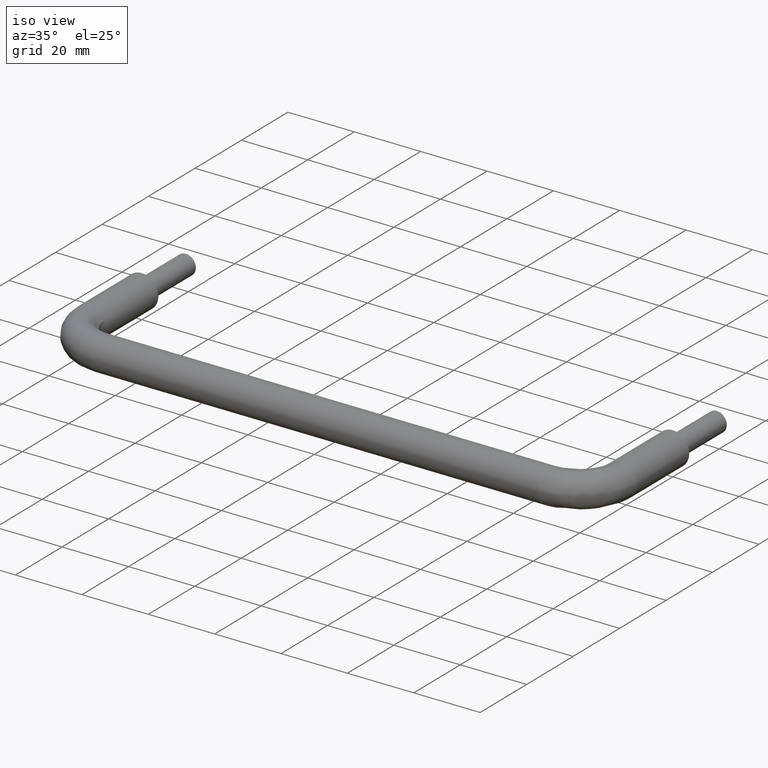
[diagram: clean part render]
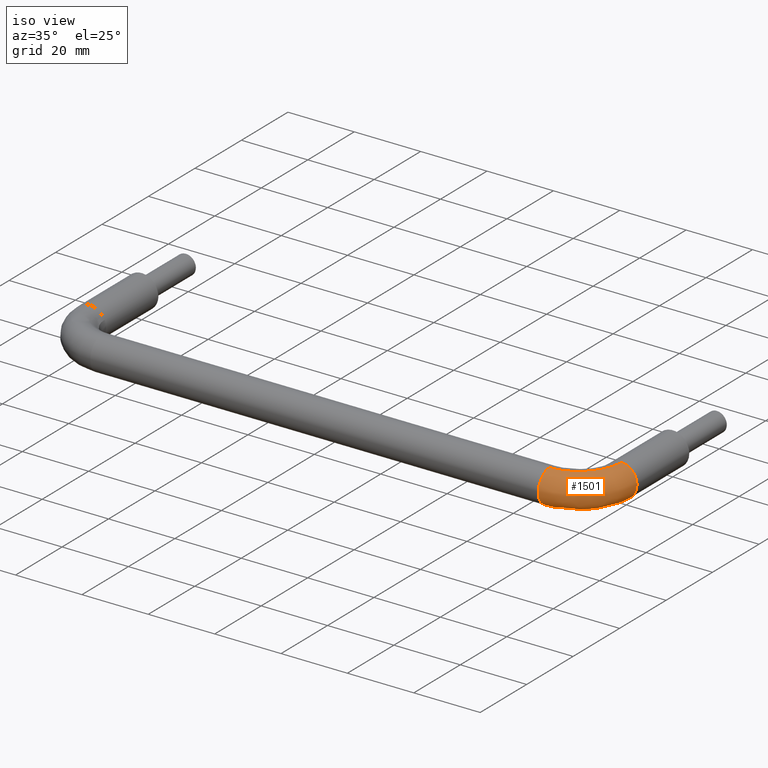
[diagram: same view with one face highlighted and labeled with its STEP entity id]
A machine part, iso view. The second image highlights one B-rep face of the part: STEP entity #1501.
In plain terms, the highlighted face is a freeform B-spline surface patch.
Its self-contained STEP definition (entity closure, byte-faithful):
#730=CARTESIAN_POINT('',(163.294846744962510,-22.499999999999972,-3.760848963626144));
#731=VERTEX_POINT('',#730);
#732=CARTESIAN_POINT('',(159.937169799699600,-22.500000000789459,-4.999605221007975));
#733=VERTEX_POINT('',#732);
#734=CARTESIAN_POINT('',(163.294846744962570,-22.499999999999996,-3.760848963626326));
#735=CARTESIAN_POINT('',(161.880438048094560,-22.499999999999993,-5.0));
#736=CARTESIAN_POINT('',(160.0,-22.500000000000000,-5.0));
#737=CARTESIAN_POINT('',(159.968583659156850,-22.500000000000000,-5.000000000000001));
#738=CARTESIAN_POINT('',(159.937169799699660,-22.500000000789463,-4.999605221007975));
#746=(BOUNDED_CURVE()B_SPLINE_CURVE(2,(#734,#735,#736,#737,#738),.UNSPECIFIED.,.F.,.U.)B_SPLINE_CURVE_WITH_KNOTS((3,2,3),(0.134954764893290,0.250000000000000,0.252215704140435),.UNSPECIFIED.)CURVE()GEOMETRIC_REPRESENTATION_ITEM()RATIONAL_B_SPLINE_CURVE((0.854482188675951,0.865216123121782,1.0,0.997404141129478,0.994854295500936))REPRESENTATION_ITEM(''));
#747=EDGE_CURVE('',#731,#733,#746,.T.);
#848=CARTESIAN_POINT('',(165.0,-22.500000000000000,0.0));
#849=VERTEX_POINT('',#848);
#850=CARTESIAN_POINT('',(165.0,-22.500000000000000,0.0));
#851=CARTESIAN_POINT('',(165.0,-22.499999999999993,-2.266979173491211));
#852=CARTESIAN_POINT('',(163.294846744962570,-22.499999999999996,-3.760848963626326));
#860=(BOUNDED_CURVE()B_SPLINE_CURVE(2,(#850,#851,#852),.UNSPECIFIED.,.F.,.U.)B_SPLINE_CURVE_WITH_KNOTS((3,3),(0.0,0.134954764893290),.UNSPECIFIED.)CURVE()GEOMETRIC_REPRESENTATION_ITEM()RATIONAL_B_SPLINE_CURVE((1.0,0.841890658064766,0.854482188675951))REPRESENTATION_ITEM(''));
#861=EDGE_CURVE('',#849,#731,#860,.T.);
#895=CARTESIAN_POINT('',(160.348666263995000,-22.500000001517460,4.987828368774506));
#896=VERTEX_POINT('',#895);
#912=CARTESIAN_POINT('',(160.348666263995090,-22.500000001517456,4.987828368774506));
#913=CARTESIAN_POINT('',(164.999999999999940,-22.500000000000004,4.662684224867201));
#914=CARTESIAN_POINT('',(165.0,-22.500000000000000,0.0));
#922=(BOUNDED_CURVE()B_SPLINE_CURVE(2,(#912,#913,#914),.UNSPECIFIED.,.F.,.U.)B_SPLINE_CURVE_WITH_KNOTS((3,3),(0.762166313886754,1.0),.UNSPECIFIED.)CURVE()GEOMETRIC_REPRESENTATION_ITEM()RATIONAL_B_SPLINE_CURVE((0.972879875494736,0.721360504528092,1.0))REPRESENTATION_ITEM(''));
#923=EDGE_CURVE('',#896,#849,#922,.T.);
#956=CARTESIAN_POINT('',(147.500000002716090,-35.348666267987262,4.987828368495434));
#957=VERTEX_POINT('',#956);
#1012=CARTESIAN_POINT('',(147.500000000000000,-38.626872198659441,-3.441772516391942));
#1013=VERTEX_POINT('',#1012);
#1019=CARTESIAN_POINT('',(147.500000000000000,-40.0,0.0));
#1020=VERTEX_POINT('',#1019);
#1021=CARTESIAN_POINT('',(147.500000000000000,-40.0,0.0));
#1022=CARTESIAN_POINT('',(147.500000000000000,-40.0,-1.994797151259686));
#1023=CARTESIAN_POINT('',(147.499999999999970,-38.626872198659449,-3.441772516391941));
#1031=(BOUNDED_CURVE()B_SPLINE_CURVE(2,(#1021,#1022,#1023),.UNSPECIFIED.,.F.,.U.)B_SPLINE_CURVE_WITH_KNOTS((3,3),(0.0,0.121049496527031),.UNSPECIFIED.)CURVE()GEOMETRIC_REPRESENTATION_ITEM()RATIONAL_B_SPLINE_CURVE((1.0,0.858181693305800,0.853699663600792))REPRESENTATION_ITEM(''));
#1032=EDGE_CURVE('',#1020,#1013,#1031,.T.);
#1034=CARTESIAN_POINT('',(147.500000002716090,-35.348666267987262,4.987828368495434));
#1035=CARTESIAN_POINT('',(147.500000000000000,-40.0,4.662684217384968));
#1036=CARTESIAN_POINT('',(147.500000000000000,-40.0,0.0));
#1044=(BOUNDED_CURVE()B_SPLINE_CURVE(2,(#1034,#1035,#1036),.UNSPECIFIED.,.F.,.U.)B_SPLINE_CURVE_WITH_KNOTS((3,3),(0.762166314162063,1.0),.UNSPECIFIED.)CURVE()GEOMETRIC_REPRESENTATION_ITEM()RATIONAL_B_SPLINE_CURVE((0.972879874912433,0.721360504850637,1.0))REPRESENTATION_ITEM(''));
#1045=EDGE_CURVE('',#957,#1020,#1044,.T.);
#1083=CARTESIAN_POINT('',(147.500000001367910,-34.937169798597438,-4.999605220994123));
#1084=VERTEX_POINT('',#1083);
#1098=CARTESIAN_POINT('',(147.499999999999970,-38.626872198659449,-3.441772516391941));
#1099=CARTESIAN_POINT('',(147.500000000000060,-37.148170121130043,-5.000000000000001));
#1100=CARTESIAN_POINT('',(147.500000000000000,-35.0,-5.0));
#1101=CARTESIAN_POINT('',(147.500000000000000,-34.968583658054513,-5.0));
#1102=CARTESIAN_POINT('',(147.500000001367910,-34.937169798597438,-4.999605220994124));
#1110=(BOUNDED_CURVE()B_SPLINE_CURVE(2,(#1098,#1099,#1100,#1101,#1102),.UNSPECIFIED.,.F.,.U.)B_SPLINE_CURVE_WITH_KNOTS((3,2,3),(0.121049496527031,0.250000000000000,0.252215704217978),.UNSPECIFIED.)CURVE()GEOMETRIC_REPRESENTATION_ITEM()RATIONAL_B_SPLINE_CURVE((0.853699663600792,0.848925087880748,1.0,0.997404141038632,0.994854295322463))REPRESENTATION_ITEM(''));
#1111=EDGE_CURVE('',#1013,#1084,#1110,.T.);
#1430=CARTESIAN_POINT('',(147.500000001367940,-34.937169798597431,-4.999605220994123));
#1431=CARTESIAN_POINT('',(159.937169799004380,-34.937169797847410,-4.999605221019079));
#1432=CARTESIAN_POINT('',(159.937169799699600,-22.500000000789463,-4.999605221007975));
#1440=(BOUNDED_CURVE()B_SPLINE_CURVE(2,(#1430,#1431,#1432),.UNSPECIFIED.,.F.,.U.)B_SPLINE_CURVE_WITH_KNOTS((3,3),(-1.734750791429830,-0.265249208473514),.UNSPECIFIED.)CURVE()GEOMETRIC_REPRESENTATION_ITEM()RATIONAL_B_SPLINE_CURVE((0.889029723495438,0.628638946281181,0.889029723529692))REPRESENTATION_ITEM(''));
#1441=EDGE_CURVE('',#1084,#733,#1440,.T.);
#1446=CARTESIAN_POINT('',(147.500000002716120,-35.348666267987255,4.987828368495434));
#1447=CARTESIAN_POINT('',(160.348666254842300,-35.348666252445035,4.987828369202160));
#1448=CARTESIAN_POINT('',(160.348666263995090,-22.500000001517460,4.987828368774506));
#1456=(BOUNDED_CURVE()B_SPLINE_CURVE(2,(#1446,#1447,#1448),.UNSPECIFIED.,.F.,.U.)B_SPLINE_CURVE_WITH_KNOTS((3,3),(-1.734750791219093,-0.265249208587037),.UNSPECIFIED.)CURVE()GEOMETRIC_REPRESENTATION_ITEM()RATIONAL_B_SPLINE_CURVE((0.869031711723074,0.614498216651756,0.869031711790235))REPRESENTATION_ITEM(''));
#1457=EDGE_CURVE('',#957,#896,#1456,.T.);
#1462=CARTESIAN_POINT('',(146.640079264420850,-34.836424934968989,-4.998715343951289));
#1463=CARTESIAN_POINT('',(160.825211733896820,-35.825211363106980,-4.998715343951290));
#1464=CARTESIAN_POINT('',(159.836424911040720,-21.640078921145136,-4.998715343951289));
#1465=CARTESIAN_POINT('',(146.637624531157090,-34.871640544258554,-4.999158973509131));
#1466=CARTESIAN_POINT('',(160.863249938043910,-35.863249566195599,-4.999158973509130));
#1467=CARTESIAN_POINT('',(159.871640520261910,-21.637624186901423,-4.999158973509129));
#1468=CARTESIAN_POINT('',(146.287497276693670,-39.894566976500130,-5.062435420435841));
#1469=CARTESIAN_POINT('',(166.288773019992930,-41.288772497173028,-5.062435420435840));
#1470=CARTESIAN_POINT('',(164.894566942760780,-21.287496792669234,-5.062435420435842));
#1471=CARTESIAN_POINT('',(146.283128246996110,-39.957245087019295,-0.062830199416764));
#1472=CARTESIAN_POINT('',(166.356474894575770,-41.356474369872032,-0.062830199416764));
#1473=CARTESIAN_POINT('',(164.957245053158370,-21.283127761227600,-0.062830199416764));
#1474=CARTESIAN_POINT('',(146.279002338772220,-40.016435376294552,4.658564189198486));
#1475=CARTESIAN_POINT('',(166.420409392725870,-41.420408866243044,4.658564189198486));
#1476=CARTESIAN_POINT('',(165.016435342318830,-21.279001851356654,4.658564189198486));
#1477=CARTESIAN_POINT('',(146.609018843088760,-35.282017813890853,4.990319222604951));
#1478=CARTESIAN_POINT('',(161.306519689001310,-36.306519304818515,4.990319222604951));
#1479=CARTESIAN_POINT('',(160.282017789098120,-21.609018487413941,4.990319222604951));
#1480=CARTESIAN_POINT('',(146.611483188972440,-35.246664301934935,4.992796550678653));
#1481=CARTESIAN_POINT('',(161.268332529039410,-36.268332145919253,4.992796550678651));
#1482=CARTESIAN_POINT('',(160.246664277210900,-21.611482834281254,4.992796550678653));
#1490=(BOUNDED_SURFACE()B_SPLINE_SURFACE(2,2,((#1462,#1465,#1468,#1471,#1474,#1477,#1480),(#1463,#1466,#1469,#1472,#1475,#1478,#1481),(#1464,#1467,#1470,#1473,#1476,#1479,#1482)),.UNSPECIFIED.,.F.,.F.,.U.)B_SPLINE_SURFACE_WITH_KNOTS((3,3),(3,1,2,1,3),(0.0,31.890824110817562),(0.0,0.083455741646501,8.367726989108405,16.320627386671831,16.402664586924210),.UNSPECIFIED.)GEOMETRIC_REPRESENTATION_ITEM()RATIONAL_B_SPLINE_SURFACE(((0.921749624287106,0.919045859764019,0.647951709431553,0.916342095240933,0.658687324863928,0.898174896241236,0.900620078871699),(0.604875124358719,0.603100846551550,0.425202094466791,0.601326568744382,0.432247073437895,0.589404799030952,0.591009388942041),(0.921749635972521,0.919045871415158,0.647951717645915,0.916342106857795,0.658687333214390,0.898174907627784,0.900620090289246)))REPRESENTATION_ITEM('')SURFACE());
#1491=ORIENTED_EDGE('',*,*,#923,.F.);
#1492=ORIENTED_EDGE('',*,*,#1457,.F.);
#1493=ORIENTED_EDGE('',*,*,#1045,.T.);
#1494=ORIENTED_EDGE('',*,*,#1032,.T.);
#1495=ORIENTED_EDGE('',*,*,#1111,.T.);
#1496=ORIENTED_EDGE('',*,*,#1441,.T.);
#1497=ORIENTED_EDGE('',*,*,#747,.F.);
#1498=ORIENTED_EDGE('',*,*,#861,.F.);
#1499=EDGE_LOOP('',(#1491,#1492,#1493,#1494,#1495,#1496,#1497,#1498));
#1500=FACE_OUTER_BOUND('',#1499,.T.);
#1501=ADVANCED_FACE('',(#1500),#1490,.T.);